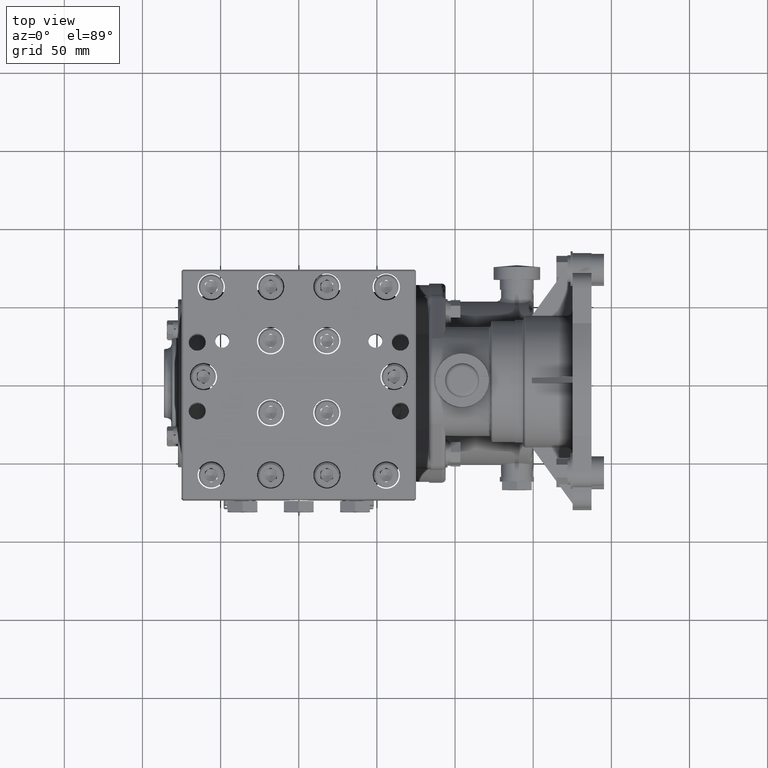
[diagram: clean part render]
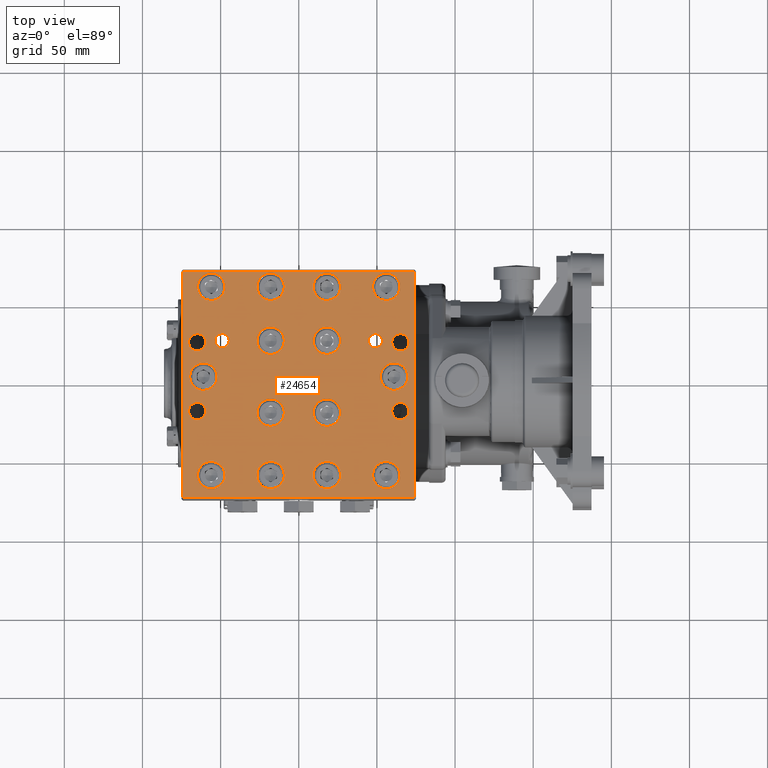
[diagram: same view with one face highlighted and labeled with its STEP entity id]
A machine part, top view. The second image highlights one B-rep face of the part: STEP entity #24654.
In plain terms, the highlighted planar face has unit normal (0, -0, 1).
Its self-contained STEP definition (entity closure, byte-faithful):
#12 = FACE_BOUND ( 'NONE', #84730, .T. ) ;
#111 = AXIS2_PLACEMENT_3D ( 'NONE', #45587, #73936, #10357 ) ;
#456 = FACE_BOUND ( 'NONE', #4973, .T. ) ;
#595 = CARTESIAN_POINT ( 'NONE',  ( -2.057086614173228689, 0.000000000000000000, 9.645669291338583307 ) ) ;
#753 = AXIS2_PLACEMENT_3D ( 'NONE', #29311, #57251, #6951 ) ;
#1359 = CARTESIAN_POINT ( 'NONE',  ( -2.559055118110236560, 0.8661417322834643606, 9.645669291338583307 ) ) ;
#1730 = DIRECTION ( 'NONE',  ( 1.000000000000000000, 0.000000000000000000, 0.000000000000000000 ) ) ;
#1744 = EDGE_CURVE ( 'NONE', #45694, #80552, #57726, .T. ) ;
#2143 = AXIS2_PLACEMENT_3D ( 'NONE', #48973, #14626, #14167 ) ;
#2725 = DIRECTION ( 'NONE',  ( 1.000000000000000000, 0.000000000000000000, 0.000000000000000000 ) ) ;
#2742 = CARTESIAN_POINT ( 'NONE',  ( -2.913385826771653697, -3.090551181102361600, 9.645669291338581530 ) ) ;
#2979 = CARTESIAN_POINT ( 'NONE',  ( 0.7086614173228347191, 0.9055118110236218820, 9.645669291338583307 ) ) ;
#3517 = DIRECTION ( 'NONE',  ( 1.000000000000000000, 0.000000000000000000, 0.000000000000000000 ) ) ;
#3823 = VERTEX_POINT ( 'NONE', #9875 ) ;
#4192 = EDGE_LOOP ( 'NONE', ( #47584, #71069 ) ) ;
#4327 = CARTESIAN_POINT ( 'NONE',  ( 1.053149606299212504, 2.263779527559055094, 9.645669291338583307 ) ) ;
#4390 = CARTESIAN_POINT ( 'NONE',  ( 2.559055118110236560, -0.8661417322834635835, 9.645669291338583307 ) ) ;
#4926 = CARTESIAN_POINT ( 'NONE',  ( -2.559055118110236560, -0.8661417322834646937, 9.645669291338583307 ) ) ;
#4973 = EDGE_LOOP ( 'NONE', ( #26172, #14229 ) ) ;
#5314 = DIRECTION ( 'NONE',  ( -0.000000000000000000, -0.000000000000000000, 1.000000000000000000 ) ) ;
#5430 = VERTEX_POINT ( 'NONE', #81076 ) ;
#5688 = CIRCLE ( 'NONE', #84605, 0.3444881889763778404 ) ;
#5969 = VERTEX_POINT ( 'NONE', #22693 ) ;
#6007 = DIRECTION ( 'NONE',  ( -0.000000000000000000, -0.000000000000000000, 1.000000000000000000 ) ) ;
#6059 = CARTESIAN_POINT ( 'NONE',  ( -2.401574803149606474, 0.000000000000000000, 9.645669291338583307 ) ) ;
#6525 = EDGE_LOOP ( 'NONE', ( #74632, #38934 ) ) ;
#6628 = AXIS2_PLACEMENT_3D ( 'NONE', #58315, #70697, #29480 ) ;
#6807 = CARTESIAN_POINT ( 'NONE',  ( -2.342519685039370803, -0.8661417322834646937, 9.645669291338583307 ) ) ;
#6881 = FACE_BOUND ( 'NONE', #42222, .T. ) ;
#6951 = DIRECTION ( 'NONE',  ( 1.000000000000000000, 0.000000000000000000, 0.000000000000000000 ) ) ;
#6984 = ORIENTED_EDGE ( 'NONE', *, *, #73246, .F. ) ;
#7609 = DIRECTION ( 'NONE',  ( 1.000000000000000000, 0.000000000000000000, 0.000000000000000000 ) ) ;
#7923 = VERTEX_POINT ( 'NONE', #59699 ) ;
#8253 = CARTESIAN_POINT ( 'NONE',  ( 2.913385826771653697, -3.051181102362204189, 9.645669291338581530 ) ) ;
#8321 = CIRCLE ( 'NONE', #38969, 0.1771653543307082912 ) ;
#8379 = EDGE_LOOP ( 'NONE', ( #70415, #70704 ) ) ;
#8385 = DIRECTION ( 'NONE',  ( 1.000000000000000000, 0.000000000000000000, 0.000000000000000000 ) ) ;
#8573 = VECTOR ( 'NONE', #10734, 39.37007874015748143 ) ;
#8858 = CARTESIAN_POINT ( 'NONE',  ( -2.952755905511811108, -3.051181102362204189, 9.645669291338581530 ) ) ;
#9122 = EDGE_LOOP ( 'NONE', ( #60176, #74558 ) ) ;
#9368 = DIRECTION ( 'NONE',  ( -0.000000000000000000, -0.000000000000000000, 1.000000000000000000 ) ) ;
#9577 = DIRECTION ( 'NONE',  ( -0.000000000000000000, -0.000000000000000000, 1.000000000000000000 ) ) ;
#9875 = CARTESIAN_POINT ( 'NONE',  ( 2.342519685039370803, -0.8661417322834635835, 9.645669291338583307 ) ) ;
#10009 = EDGE_CURVE ( 'NONE', #87857, #37821, #39403, .T. ) ;
#10092 = EDGE_LOOP ( 'NONE', ( #20742, #78474 ) ) ;
#10357 = DIRECTION ( 'NONE',  ( 1.000000000000000000, 0.000000000000000000, 0.000000000000000000 ) ) ;
#10377 = DIRECTION ( 'NONE',  ( -0.000000000000000000, -0.000000000000000000, 1.000000000000000000 ) ) ;
#10734 = DIRECTION ( 'NONE',  ( 0.000000000000000000, 1.000000000000000000, 4.720335989052536622E-17 ) ) ;
#10793 = VERTEX_POINT ( 'NONE', #34686 ) ;
#10998 = DIRECTION ( 'NONE',  ( -0.000000000000000000, -0.000000000000000000, 1.000000000000000000 ) ) ;
#11128 = EDGE_CURVE ( 'NONE', #38758, #19470, #45424, .T. ) ;
#11661 = VECTOR ( 'NONE', #70619, 39.37007874015748143 ) ;
#12145 = ORIENTED_EDGE ( 'NONE', *, *, #20741, .F. ) ;
#12329 = CIRCLE ( 'NONE', #22528, 0.3444881889763778404 ) ;
#12331 = EDGE_CURVE ( 'NONE', #88179, #71071, #43572, .T. ) ;
#12412 = VERTEX_POINT ( 'NONE', #79377 ) ;
#12460 = EDGE_CURVE ( 'NONE', #77341, #34094, #52400, .T. ) ;
#12831 = EDGE_LOOP ( 'NONE', ( #27179, #70111 ) ) ;
#13132 = AXIS2_PLACEMENT_3D ( 'NONE', #36031, #64412, #1730 ) ;
#13349 = DIRECTION ( 'NONE',  ( -0.000000000000000000, -0.000000000000000000, 1.000000000000000000 ) ) ;
#13699 = FACE_BOUND ( 'NONE', #24196, .T. ) ;
#13949 = LINE ( 'NONE', #48757, #59831 ) ;
#14167 = DIRECTION ( 'NONE',  ( 0.000000000000000000, -1.000000000000000000, -4.720335989052536622E-17 ) ) ;
#14229 = ORIENTED_EDGE ( 'NONE', *, *, #10009, .F. ) ;
#14478 = CARTESIAN_POINT ( 'NONE',  ( -0.7086614173228347191, 0.9055118110236218820, 9.645669291338583307 ) ) ;
#14626 = DIRECTION ( 'NONE',  ( 0.000000000000000000, -4.720335989052536622E-17, 1.000000000000000000 ) ) ;
#14781 = LINE ( 'NONE', #8858, #11661 ) ;
#14942 = ORIENTED_EDGE ( 'NONE', *, *, #38498, .F. ) ;
#15228 = ORIENTED_EDGE ( 'NONE', *, *, #30067, .F. ) ;
#15464 = ORIENTED_EDGE ( 'NONE', *, *, #81688, .F. ) ;
#15964 = CARTESIAN_POINT ( 'NONE',  ( -2.775590551181102317, 0.8661417322834643606, 9.645669291338583307 ) ) ;
#16055 = ORIENTED_EDGE ( 'NONE', *, *, #34360, .T. ) ;
#16427 = CARTESIAN_POINT ( 'NONE',  ( -2.401574803149606474, 0.000000000000000000, 9.645669291338583307 ) ) ;
#16437 = EDGE_CURVE ( 'NONE', #80773, #77341, #14781, .T. ) ;
#16853 = VERTEX_POINT ( 'NONE', #86935 ) ;
#16891 = DIRECTION ( 'NONE',  ( 0.000000000000000000, -1.000000000000000000, -4.720335989052536622E-17 ) ) ;
#17674 = DIRECTION ( 'NONE',  ( 1.000000000000000000, 0.000000000000000000, 0.000000000000000000 ) ) ;
#18215 = AXIS2_PLACEMENT_3D ( 'NONE', #43426, #84610, #50744 ) ;
#18630 = CIRCLE ( 'NONE', #87368, 0.3444881889763777294 ) ;
#18877 = VERTEX_POINT ( 'NONE', #69742 ) ;
#19265 = EDGE_LOOP ( 'NONE', ( #15228, #81515 ) ) ;
#19470 = VERTEX_POINT ( 'NONE', #28424 ) ;
#19635 = CARTESIAN_POINT ( 'NONE',  ( 2.106299212598425008, 0.9055118110236218820, 9.645669291338583307 ) ) ;
#19715 = CIRCLE ( 'NONE', #18215, 0.3444881889763778404 ) ;
#20105 = FACE_BOUND ( 'NONE', #37612, .T. ) ;
#20393 = CARTESIAN_POINT ( 'NONE',  ( -1.053149606299212504, -2.480314960629921295, 9.645669291338583307 ) ) ;
#20566 = FACE_BOUND ( 'NONE', #24405, .T. ) ;
#20701 = ORIENTED_EDGE ( 'NONE', *, *, #48803, .F. ) ;
#20741 = EDGE_CURVE ( 'NONE', #7923, #83138, #63074, .T. ) ;
#20742 = ORIENTED_EDGE ( 'NONE', *, *, #84105, .F. ) ;
#21007 = FACE_BOUND ( 'NONE', #28044, .T. ) ;
#21048 = EDGE_CURVE ( 'NONE', #85061, #70922, #89364, .T. ) ;
#21331 = EDGE_CURVE ( 'NONE', #55710, #23120, #29550, .T. ) ;
#21461 = DIRECTION ( 'NONE',  ( -0.000000000000000000, -0.000000000000000000, 1.000000000000000000 ) ) ;
#22507 = CIRCLE ( 'NONE', #73671, 0.3444881889763777294 ) ;
#22524 = EDGE_CURVE ( 'NONE', #83046, #84745, #67609, .T. ) ;
#22528 = AXIS2_PLACEMENT_3D ( 'NONE', #2979, #53268, #39977 ) ;
#22634 = ORIENTED_EDGE ( 'NONE', *, *, #73804, .F. ) ;
#22666 = DIRECTION ( 'NONE',  ( -0.000000000000000000, -0.000000000000000000, 1.000000000000000000 ) ) ;
#22693 = CARTESIAN_POINT ( 'NONE',  ( 1.860236220472440971, -2.480314960629921295, 9.645669291338583307 ) ) ;
#23100 = CARTESIAN_POINT ( 'NONE',  ( -2.746062992125984259, 4.218763579739894579E-17, 9.645669291338583307 ) ) ;
#23120 = VERTEX_POINT ( 'NONE', #595 ) ;
#24196 = EDGE_LOOP ( 'NONE', ( #22634, #46382 ) ) ;
#24405 = EDGE_LOOP ( 'NONE', ( #25620, #14942 ) ) ;
#24529 = CARTESIAN_POINT ( 'NONE',  ( 2.204724409448818534, -2.480314960629921295, 9.645669291338583307 ) ) ;
#24537 = DIRECTION ( 'NONE',  ( 1.000000000000000000, 0.000000000000000000, 0.000000000000000000 ) ) ;
#24592 = DIRECTION ( 'NONE',  ( 1.000000000000000000, 0.000000000000000000, 0.000000000000000000 ) ) ;
#24654 = ADVANCED_FACE ( 'NONE', ( #56732, #42550, #63141, #69545, #20566, #6881, #33855, #76404, #20105, #84653, #27882, #456, #13699, #28791, #48091, #62677, #47624, #12, #75962, #77325, #21007 ), #75501, .T. ) ;
#24844 = DIRECTION ( 'NONE',  ( -0.000000000000000000, -0.000000000000000000, 1.000000000000000000 ) ) ;
#25215 = ORIENTED_EDGE ( 'NONE', *, *, #40697, .F. ) ;
#25369 = AXIS2_PLACEMENT_3D ( 'NONE', #47215, #68233, #61380 ) ;
#25409 = EDGE_CURVE ( 'NONE', #77497, #34558, #31426, .T. ) ;
#25588 = DIRECTION ( 'NONE',  ( -0.000000000000000000, -0.000000000000000000, 1.000000000000000000 ) ) ;
#25620 = ORIENTED_EDGE ( 'NONE', *, *, #25409, .F. ) ;
#25696 = AXIS2_PLACEMENT_3D ( 'NONE', #61467, #51802, #8385 ) ;
#26111 = EDGE_CURVE ( 'NONE', #42883, #5969, #87022, .T. ) ;
#26172 = ORIENTED_EDGE ( 'NONE', *, *, #86150, .F. ) ;
#27179 = ORIENTED_EDGE ( 'NONE', *, *, #12331, .F. ) ;
#27208 = DIRECTION ( 'NONE',  ( 1.000000000000000000, 0.000000000000000000, 0.000000000000000000 ) ) ;
#27476 = CARTESIAN_POINT ( 'NONE',  ( -1.929133858267716883, 0.9055118110236218820, 9.645669291338583307 ) ) ;
#27666 = EDGE_CURVE ( 'NONE', #70922, #85061, #19715, .T. ) ;
#27785 = ORIENTED_EDGE ( 'NONE', *, *, #35751, .F. ) ;
#27882 = FACE_BOUND ( 'NONE', #12831, .T. ) ;
#28044 = EDGE_LOOP ( 'NONE', ( #85556, #12145 ) ) ;
#28061 = CARTESIAN_POINT ( 'NONE',  ( 0.7086614173228347191, -0.9055118110236222151, 9.645669291338583307 ) ) ;
#28222 = CARTESIAN_POINT ( 'NONE',  ( 2.204724409448818534, 2.263779527559055094, 9.645669291338583307 ) ) ;
#28424 = CARTESIAN_POINT ( 'NONE',  ( 0.3641732283464568787, -2.480314960629921295, 9.645669291338583307 ) ) ;
#28791 = FACE_BOUND ( 'NONE', #9122, .T. ) ;
#29290 = AXIS2_PLACEMENT_3D ( 'NONE', #53555, #21461, #68618 ) ;
#29311 = CARTESIAN_POINT ( 'NONE',  ( -1.929133858267716883, 0.9055118110236218820, 9.645669291338583307 ) ) ;
#29346 = CIRCLE ( 'NONE', #39410, 0.3444881889763778404 ) ;
#29401 = EDGE_CURVE ( 'NONE', #73629, #78725, #43959, .T. ) ;
#29480 = DIRECTION ( 'NONE',  ( 1.000000000000000000, 0.000000000000000000, 0.000000000000000000 ) ) ;
#29550 = CIRCLE ( 'NONE', #39729, 0.3444881889763777294 ) ;
#29971 = DIRECTION ( 'NONE',  ( -0.000000000000000000, -0.000000000000000000, 1.000000000000000000 ) ) ;
#30067 = EDGE_CURVE ( 'NONE', #72185, #33390, #29346, .T. ) ;
#30882 = CARTESIAN_POINT ( 'NONE',  ( 1.053149606299212504, -2.480314960629921295, 9.645669291338583307 ) ) ;
#30912 = AXIS2_PLACEMENT_3D ( 'NONE', #46519, #10377, #17674 ) ;
#30915 = AXIS2_PLACEMENT_3D ( 'NONE', #65247, #59725, #38215 ) ;
#31133 = CARTESIAN_POINT ( 'NONE',  ( 1.053149606299212504, 0.9055118110236218820, 9.645669291338583307 ) ) ;
#31321 = CARTESIAN_POINT ( 'NONE',  ( 2.913385826771653697, 2.696850393700787496, 9.645669291338583307 ) ) ;
#31403 = VERTEX_POINT ( 'NONE', #55191 ) ;
#31426 = CIRCLE ( 'NONE', #6628, 0.2165354330708657848 ) ;
#33263 = CARTESIAN_POINT ( 'NONE',  ( -0.3641732283464568787, 0.9055118110236218820, 9.645669291338583307 ) ) ;
#33340 = AXIS2_PLACEMENT_3D ( 'NONE', #68421, #54700, #27208 ) ;
#33390 = VERTEX_POINT ( 'NONE', #83513 ) ;
#33428 = ORIENTED_EDGE ( 'NONE', *, *, #60519, .F. ) ;
#33534 = CARTESIAN_POINT ( 'NONE',  ( -2.559055118110236560, -0.8661417322834646937, 9.645669291338583307 ) ) ;
#33855 = FACE_BOUND ( 'NONE', #10092, .T. ) ;
#34094 = VERTEX_POINT ( 'NONE', #39396 ) ;
#34360 = EDGE_CURVE ( 'NONE', #59294, #80773, #64962, .T. ) ;
#34558 = VERTEX_POINT ( 'NONE', #47540 ) ;
#34617 = ORIENTED_EDGE ( 'NONE', *, *, #87103, .F. ) ;
#34686 = CARTESIAN_POINT ( 'NONE',  ( -1.751968503937008759, 0.9055118110236218820, 9.645669291338583307 ) ) ;
#34917 = ORIENTED_EDGE ( 'NONE', *, *, #1744, .F. ) ;
#35216 = DIRECTION ( 'NONE',  ( 1.000000000000000000, 0.000000000000000000, 0.000000000000000000 ) ) ;
#35431 = CARTESIAN_POINT ( 'NONE',  ( -0.7086614173228347191, -2.480314960629921295, 9.645669291338583307 ) ) ;
#35751 = EDGE_CURVE ( 'NONE', #78725, #73629, #53117, .T. ) ;
#36031 = CARTESIAN_POINT ( 'NONE',  ( -0.7086614173228347191, -2.480314960629921295, 9.645669291338583307 ) ) ;
#36306 = CIRCLE ( 'NONE', #48034, 0.1771653543307082912 ) ;
#36574 = AXIS2_PLACEMENT_3D ( 'NONE', #45942, #88444, #38588 ) ;
#37565 = CARTESIAN_POINT ( 'NONE',  ( 1.929133858267716661, 0.9055118110236218820, 9.645669291338583307 ) ) ;
#37612 = EDGE_LOOP ( 'NONE', ( #6984, #20701 ) ) ;
#37821 = VERTEX_POINT ( 'NONE', #89037 ) ;
#38215 = DIRECTION ( 'NONE',  ( 1.000000000000000000, 0.000000000000000000, 0.000000000000000000 ) ) ;
#38498 = EDGE_CURVE ( 'NONE', #34558, #77497, #85319, .T. ) ;
#38588 = DIRECTION ( 'NONE',  ( 1.000000000000000000, 0.000000000000000000, 0.000000000000000000 ) ) ;
#38758 = VERTEX_POINT ( 'NONE', #30882 ) ;
#38893 = CARTESIAN_POINT ( 'NONE',  ( -2.204724409448818534, 2.263779527559055094, 9.645669291338583307 ) ) ;
#38934 = ORIENTED_EDGE ( 'NONE', *, *, #44524, .F. ) ;
#38969 = AXIS2_PLACEMENT_3D ( 'NONE', #37565, #10998, #44433 ) ;
#39182 = CARTESIAN_POINT ( 'NONE',  ( 0.7086614173228347191, 0.9055118110236218820, 9.645669291338583307 ) ) ;
#39396 = CARTESIAN_POINT ( 'NONE',  ( 2.913385826771653697, 2.657480314960630086, 9.645669291338583307 ) ) ;
#39403 = CIRCLE ( 'NONE', #13132, 0.3444881889763778404 ) ;
#39410 = AXIS2_PLACEMENT_3D ( 'NONE', #39182, #53815, #3517 ) ;
#39444 = EDGE_CURVE ( 'NONE', #12412, #10793, #53310, .T. ) ;
#39674 = DIRECTION ( 'NONE',  ( -0.000000000000000000, -0.000000000000000000, 1.000000000000000000 ) ) ;
#39729 = AXIS2_PLACEMENT_3D ( 'NONE', #6059, #13349, #56812 ) ;
#39977 = DIRECTION ( 'NONE',  ( 1.000000000000000000, 0.000000000000000000, 0.000000000000000000 ) ) ;
#40258 = DIRECTION ( 'NONE',  ( 1.000000000000000000, 0.000000000000000000, 0.000000000000000000 ) ) ;
#40517 = CARTESIAN_POINT ( 'NONE',  ( -2.549212598425196319, -2.480314960629921295, 9.645669291338583307 ) ) ;
#40697 = EDGE_CURVE ( 'NONE', #31403, #18877, #76761, .T. ) ;
#41326 = CARTESIAN_POINT ( 'NONE',  ( 0.3641732283464568787, -0.9055118110236222151, 9.645669291338583307 ) ) ;
#42099 = CARTESIAN_POINT ( 'NONE',  ( 0.7086614173228347191, 2.263779527559055094, 9.645669291338583307 ) ) ;
#42222 = EDGE_LOOP ( 'NONE', ( #34617, #54147 ) ) ;
#42550 = FACE_BOUND ( 'NONE', #82280, .T. ) ;
#42558 = DIRECTION ( 'NONE',  ( -0.000000000000000000, -0.000000000000000000, 1.000000000000000000 ) ) ;
#42762 = DIRECTION ( 'NONE',  ( 1.000000000000000000, 0.000000000000000000, 0.000000000000000000 ) ) ;
#42790 = DIRECTION ( 'NONE',  ( -1.000000000000000000, 0.000000000000000000, 0.000000000000000000 ) ) ;
#42825 = DIRECTION ( 'NONE',  ( 1.000000000000000000, 0.000000000000000000, 0.000000000000000000 ) ) ;
#42883 = VERTEX_POINT ( 'NONE', #44755 ) ;
#43027 = DIRECTION ( 'NONE',  ( -0.000000000000000000, -0.000000000000000000, 1.000000000000000000 ) ) ;
#43100 = EDGE_CURVE ( 'NONE', #63205, #62156, #87330, .T. ) ;
#43426 = CARTESIAN_POINT ( 'NONE',  ( 0.7086614173228347191, -0.9055118110236222151, 9.645669291338583307 ) ) ;
#43563 = AXIS2_PLACEMENT_3D ( 'NONE', #35431, #55575, #42762 ) ;
#43572 = CIRCLE ( 'NONE', #45064, 0.3444881889763778404 ) ;
#43760 = CIRCLE ( 'NONE', #67109, 0.3444881889763778404 ) ;
#43762 = DIRECTION ( 'NONE',  ( -0.000000000000000000, -0.000000000000000000, 1.000000000000000000 ) ) ;
#43959 = CIRCLE ( 'NONE', #29290, 0.2165354330708657848 ) ;
#44138 = CARTESIAN_POINT ( 'NONE',  ( -2.549212598425196319, 2.263779527559055094, 9.645669291338583307 ) ) ;
#44149 = DIRECTION ( 'NONE',  ( 1.000000000000000000, 0.000000000000000000, 0.000000000000000000 ) ) ;
#44433 = DIRECTION ( 'NONE',  ( 1.000000000000000000, 0.000000000000000000, 0.000000000000000000 ) ) ;
#44524 = EDGE_CURVE ( 'NONE', #62156, #63205, #61308, .T. ) ;
#44755 = CARTESIAN_POINT ( 'NONE',  ( 2.549212598425196319, -2.480314960629921295, 9.645669291338583307 ) ) ;
#45064 = AXIS2_PLACEMENT_3D ( 'NONE', #71666, #22666, #72094 ) ;
#45133 = DIRECTION ( 'NONE',  ( 1.000000000000000000, 0.000000000000000000, 0.000000000000000000 ) ) ;
#45148 = ORIENTED_EDGE ( 'NONE', *, *, #21048, .F. ) ;
#45424 = CIRCLE ( 'NONE', #71778, 0.3444881889763778404 ) ;
#45587 = CARTESIAN_POINT ( 'NONE',  ( 2.204724409448818534, -2.480314960629921295, 9.645669291338583307 ) ) ;
#45620 = CARTESIAN_POINT ( 'NONE',  ( 2.401574803149606474, 0.000000000000000000, 9.645669291338583307 ) ) ;
#45625 = EDGE_LOOP ( 'NONE', ( #68393, #16055, #50015, #71897 ) ) ;
#45654 = CARTESIAN_POINT ( 'NONE',  ( 0.7086614173228347191, 2.263779527559055094, 9.645669291338583307 ) ) ;
#45694 = VERTEX_POINT ( 'NONE', #6807 ) ;
#45921 = ORIENTED_EDGE ( 'NONE', *, *, #27666, .F. ) ;
#45942 = CARTESIAN_POINT ( 'NONE',  ( -0.7086614173228347191, 0.9055118110236218820, 9.645669291338583307 ) ) ;
#46165 = EDGE_CURVE ( 'NONE', #78844, #84218, #80978, .T. ) ;
#46322 = EDGE_CURVE ( 'NONE', #33390, #72185, #12329, .T. ) ;
#46382 = ORIENTED_EDGE ( 'NONE', *, *, #61106, .F. ) ;
#46519 = CARTESIAN_POINT ( 'NONE',  ( -2.204724409448818534, -2.480314960629921295, 9.645669291338583307 ) ) ;
#46719 = CARTESIAN_POINT ( 'NONE',  ( 2.559055118110236560, -0.8661417322834635835, 9.645669291338583307 ) ) ;
#47215 = CARTESIAN_POINT ( 'NONE',  ( 2.559055118110236560, 0.8661417322834641386, 9.645669291338583307 ) ) ;
#47336 = AXIS2_PLACEMENT_3D ( 'NONE', #1359, #70450, #35216 ) ;
#47540 = CARTESIAN_POINT ( 'NONE',  ( 2.342519685039370803, 0.8661417322834641386, 9.645669291338583307 ) ) ;
#47584 = ORIENTED_EDGE ( 'NONE', *, *, #22524, .F. ) ;
#47624 = FACE_BOUND ( 'NONE', #8379, .T. ) ;
#48034 = AXIS2_PLACEMENT_3D ( 'NONE', #27476, #55416, #83322 ) ;
#48091 = FACE_BOUND ( 'NONE', #90242, .T. ) ;
#48264 = CIRCLE ( 'NONE', #52628, 0.2165354330708657848 ) ;
#48430 = CARTESIAN_POINT ( 'NONE',  ( -2.342519685039370803, 0.8661417322834643606, 9.645669291338583307 ) ) ;
#48593 = CARTESIAN_POINT ( 'NONE',  ( -0.3641732283464568787, -0.9055118110236222151, 9.645669291338583307 ) ) ;
#48757 = CARTESIAN_POINT ( 'NONE',  ( -2.952755905511811108, 2.657480314960630086, 9.645669291338583307 ) ) ;
#48803 = EDGE_CURVE ( 'NONE', #60334, #82075, #65208, .T. ) ;
#48973 = CARTESIAN_POINT ( 'NONE',  ( -2.952755905511811108, 2.696850393700787496, 9.645669291338583307 ) ) ;
#48991 = DIRECTION ( 'NONE',  ( 1.000000000000000000, 0.000000000000000000, 0.000000000000000000 ) ) ;
#49344 = DIRECTION ( 'NONE',  ( -0.000000000000000000, -0.000000000000000000, 1.000000000000000000 ) ) ;
#49657 = CARTESIAN_POINT ( 'NONE',  ( -1.053149606299212504, 0.9055118110236218820, 9.645669291338583307 ) ) ;
#50015 = ORIENTED_EDGE ( 'NONE', *, *, #16437, .T. ) ;
#50167 = CARTESIAN_POINT ( 'NONE',  ( 0.7086614173228347191, -2.480314960629921295, 9.645669291338583307 ) ) ;
#50744 = DIRECTION ( 'NONE',  ( 1.000000000000000000, 0.000000000000000000, 0.000000000000000000 ) ) ;
#51263 = AXIS2_PLACEMENT_3D ( 'NONE', #4390, #58417, #45133 ) ;
#51369 = CARTESIAN_POINT ( 'NONE',  ( -1.053149606299212504, -0.9055118110236222151, 9.645669291338583307 ) ) ;
#51373 = ORIENTED_EDGE ( 'NONE', *, *, #29401, .F. ) ;
#51579 = AXIS2_PLACEMENT_3D ( 'NONE', #14478, #43762, #71681 ) ;
#51802 = DIRECTION ( 'NONE',  ( -0.000000000000000000, -0.000000000000000000, 1.000000000000000000 ) ) ;
#52032 = DIRECTION ( 'NONE',  ( 1.000000000000000000, 0.000000000000000000, 0.000000000000000000 ) ) ;
#52400 = LINE ( 'NONE', #31321, #8573 ) ;
#52628 = AXIS2_PLACEMENT_3D ( 'NONE', #46719, #73259, #59530 ) ;
#52795 = DIRECTION ( 'NONE',  ( 1.000000000000000000, 0.000000000000000000, 0.000000000000000000 ) ) ;
#53117 = CIRCLE ( 'NONE', #47336, 0.2165354330708657848 ) ;
#53242 = VERTEX_POINT ( 'NONE', #44138 ) ;
#53268 = DIRECTION ( 'NONE',  ( -0.000000000000000000, -0.000000000000000000, 1.000000000000000000 ) ) ;
#53310 = CIRCLE ( 'NONE', #753, 0.1771653543307082912 ) ;
#53332 = AXIS2_PLACEMENT_3D ( 'NONE', #4926, #87308, #24592 ) ;
#53555 = CARTESIAN_POINT ( 'NONE',  ( -2.559055118110236560, 0.8661417322834643606, 9.645669291338583307 ) ) ;
#53713 = DIRECTION ( 'NONE',  ( -0.000000000000000000, -0.000000000000000000, 1.000000000000000000 ) ) ;
#53815 = DIRECTION ( 'NONE',  ( -0.000000000000000000, -0.000000000000000000, 1.000000000000000000 ) ) ;
#54147 = ORIENTED_EDGE ( 'NONE', *, *, #39444, .F. ) ;
#54231 = EDGE_CURVE ( 'NONE', #71071, #88179, #5688, .T. ) ;
#54352 = EDGE_LOOP ( 'NONE', ( #67019, #73808 ) ) ;
#54700 = DIRECTION ( 'NONE',  ( -0.000000000000000000, -0.000000000000000000, 1.000000000000000000 ) ) ;
#54827 = VERTEX_POINT ( 'NONE', #69799 ) ;
#55191 = CARTESIAN_POINT ( 'NONE',  ( 2.057086614173228689, 4.218763579739894579E-17, 9.645669291338583307 ) ) ;
#55416 = DIRECTION ( 'NONE',  ( -0.000000000000000000, -0.000000000000000000, 1.000000000000000000 ) ) ;
#55575 = DIRECTION ( 'NONE',  ( -0.000000000000000000, -0.000000000000000000, 1.000000000000000000 ) ) ;
#55619 = ORIENTED_EDGE ( 'NONE', *, *, #72913, .F. ) ;
#55710 = VERTEX_POINT ( 'NONE', #23100 ) ;
#56177 = AXIS2_PLACEMENT_3D ( 'NONE', #90399, #83552, #42825 ) ;
#56462 = DIRECTION ( 'NONE',  ( -0.000000000000000000, -0.000000000000000000, 1.000000000000000000 ) ) ;
#56732 = FACE_OUTER_BOUND ( 'NONE', #45625, .T. ) ;
#56812 = DIRECTION ( 'NONE',  ( 1.000000000000000000, 0.000000000000000000, 0.000000000000000000 ) ) ;
#56954 = AXIS2_PLACEMENT_3D ( 'NONE', #42099, #43027, #48991 ) ;
#57139 = CARTESIAN_POINT ( 'NONE',  ( -0.3641732283464568787, 2.263779527559055094, 9.645669291338583307 ) ) ;
#57251 = DIRECTION ( 'NONE',  ( -0.000000000000000000, -0.000000000000000000, 1.000000000000000000 ) ) ;
#57369 = EDGE_CURVE ( 'NONE', #34094, #59294, #13949, .T. ) ;
#57564 = EDGE_CURVE ( 'NONE', #84745, #83046, #73086, .T. ) ;
#57726 = CIRCLE ( 'NONE', #53332, 0.2165354330708657848 ) ;
#58315 = CARTESIAN_POINT ( 'NONE',  ( 2.559055118110236560, 0.8661417322834641386, 9.645669291338583307 ) ) ;
#58417 = DIRECTION ( 'NONE',  ( -0.000000000000000000, -0.000000000000000000, 1.000000000000000000 ) ) ;
#58501 = CIRCLE ( 'NONE', #51263, 0.2165354330708657848 ) ;
#59212 = CARTESIAN_POINT ( 'NONE',  ( 2.401574803149606474, 0.000000000000000000, 9.645669291338583307 ) ) ;
#59294 = VERTEX_POINT ( 'NONE', #69310 ) ;
#59530 = DIRECTION ( 'NONE',  ( 1.000000000000000000, 0.000000000000000000, 0.000000000000000000 ) ) ;
#59699 = CARTESIAN_POINT ( 'NONE',  ( 1.860236220472440971, 2.263779527559055094, 9.645669291338583307 ) ) ;
#59725 = DIRECTION ( 'NONE',  ( -0.000000000000000000, -0.000000000000000000, 1.000000000000000000 ) ) ;
#59831 = VECTOR ( 'NONE', #42790, 39.37007874015748143 ) ;
#59846 = CARTESIAN_POINT ( 'NONE',  ( 2.549212598425196319, 2.263779527559055094, 9.645669291338583307 ) ) ;
#60176 = ORIENTED_EDGE ( 'NONE', *, *, #68982, .F. ) ;
#60307 = VECTOR ( 'NONE', #16891, 39.37007874015748143 ) ;
#60334 = VERTEX_POINT ( 'NONE', #71163 ) ;
#60519 = EDGE_CURVE ( 'NONE', #18877, #31403, #77869, .T. ) ;
#60540 = CARTESIAN_POINT ( 'NONE',  ( -0.7086614173228347191, 2.263779527559055094, 9.645669291338583307 ) ) ;
#61090 = CIRCLE ( 'NONE', #33340, 0.3444881889763777294 ) ;
#61106 = EDGE_CURVE ( 'NONE', #69454, #16853, #80824, .T. ) ;
#61308 = CIRCLE ( 'NONE', #56954, 0.3444881889763778404 ) ;
#61380 = DIRECTION ( 'NONE',  ( 1.000000000000000000, 0.000000000000000000, 0.000000000000000000 ) ) ;
#61467 = CARTESIAN_POINT ( 'NONE',  ( -0.7086614173228347191, 2.263779527559055094, 9.645669291338583307 ) ) ;
#61903 = CIRCLE ( 'NONE', #85296, 0.3444881889763777294 ) ;
#62053 = EDGE_LOOP ( 'NONE', ( #55619, #77570 ) ) ;
#62156 = VERTEX_POINT ( 'NONE', #84242 ) ;
#62572 = DIRECTION ( 'NONE',  ( 1.000000000000000000, 0.000000000000000000, 0.000000000000000000 ) ) ;
#62636 = ORIENTED_EDGE ( 'NONE', *, *, #72949, .F. ) ;
#62677 = FACE_BOUND ( 'NONE', #79844, .T. ) ;
#63074 = CIRCLE ( 'NONE', #30915, 0.3444881889763777294 ) ;
#63141 = FACE_BOUND ( 'NONE', #63326, .T. ) ;
#63169 = DIRECTION ( 'NONE',  ( 1.000000000000000000, 0.000000000000000000, 0.000000000000000000 ) ) ;
#63205 = VERTEX_POINT ( 'NONE', #4327 ) ;
#63324 = DIRECTION ( 'NONE',  ( 1.000000000000000000, 0.000000000000000000, 0.000000000000000000 ) ) ;
#63326 = EDGE_LOOP ( 'NONE', ( #34917, #15464 ) ) ;
#63659 = AXIS2_PLACEMENT_3D ( 'NONE', #24529, #5314, #52032 ) ;
#64412 = DIRECTION ( 'NONE',  ( -0.000000000000000000, -0.000000000000000000, 1.000000000000000000 ) ) ;
#64962 = LINE ( 'NONE', #2742, #60307 ) ;
#65208 = CIRCLE ( 'NONE', #25696, 0.3444881889763778404 ) ;
#65247 = CARTESIAN_POINT ( 'NONE',  ( 2.204724409448818534, 2.263779527559055094, 9.645669291338583307 ) ) ;
#65325 = DIRECTION ( 'NONE',  ( -0.000000000000000000, -0.000000000000000000, 1.000000000000000000 ) ) ;
#66540 = CARTESIAN_POINT ( 'NONE',  ( 0.7086614173228347191, -2.480314960629921295, 9.645669291338583307 ) ) ;
#67019 = ORIENTED_EDGE ( 'NONE', *, *, #69484, .F. ) ;
#67109 = AXIS2_PLACEMENT_3D ( 'NONE', #66540, #53713, #81605 ) ;
#67609 = CIRCLE ( 'NONE', #51579, 0.3444881889763778404 ) ;
#68233 = DIRECTION ( 'NONE',  ( -0.000000000000000000, -0.000000000000000000, 1.000000000000000000 ) ) ;
#68312 = AXIS2_PLACEMENT_3D ( 'NONE', #45654, #39674, #73550 ) ;
#68393 = ORIENTED_EDGE ( 'NONE', *, *, #57369, .T. ) ;
#68421 = CARTESIAN_POINT ( 'NONE',  ( -2.204724409448818534, 2.263779527559055094, 9.645669291338583307 ) ) ;
#68618 = DIRECTION ( 'NONE',  ( 1.000000000000000000, 0.000000000000000000, 0.000000000000000000 ) ) ;
#68982 = EDGE_CURVE ( 'NONE', #23120, #55710, #18630, .T. ) ;
#69310 = CARTESIAN_POINT ( 'NONE',  ( -2.913385826771653697, 2.657480314960630086, 9.645669291338583307 ) ) ;
#69454 = VERTEX_POINT ( 'NONE', #40517 ) ;
#69484 = EDGE_CURVE ( 'NONE', #5430, #53242, #61090, .T. ) ;
#69545 = FACE_BOUND ( 'NONE', #62053, .T. ) ;
#69552 = DIRECTION ( 'NONE',  ( 1.000000000000000000, 0.000000000000000000, 0.000000000000000000 ) ) ;
#69574 = CARTESIAN_POINT ( 'NONE',  ( -2.204724409448818534, -2.480314960629921295, 9.645669291338583307 ) ) ;
#69742 = CARTESIAN_POINT ( 'NONE',  ( 2.746062992125984259, 0.000000000000000000, 9.645669291338583307 ) ) ;
#69799 = CARTESIAN_POINT ( 'NONE',  ( 2.775590551181102317, -0.8661417322834635835, 9.645669291338583307 ) ) ;
#70111 = ORIENTED_EDGE ( 'NONE', *, *, #54231, .F. ) ;
#70329 = AXIS2_PLACEMENT_3D ( 'NONE', #60540, #74729, #74277 ) ;
#70415 = ORIENTED_EDGE ( 'NONE', *, *, #11128, .F. ) ;
#70450 = DIRECTION ( 'NONE',  ( -0.000000000000000000, -0.000000000000000000, 1.000000000000000000 ) ) ;
#70619 = DIRECTION ( 'NONE',  ( 1.000000000000000000, 0.000000000000000000, 0.000000000000000000 ) ) ;
#70697 = DIRECTION ( 'NONE',  ( -0.000000000000000000, -0.000000000000000000, 1.000000000000000000 ) ) ;
#70704 = ORIENTED_EDGE ( 'NONE', *, *, #70886, .F. ) ;
#70886 = EDGE_CURVE ( 'NONE', #19470, #38758, #43760, .T. ) ;
#70922 = VERTEX_POINT ( 'NONE', #41326 ) ;
#71027 = AXIS2_PLACEMENT_3D ( 'NONE', #45620, #65325, #24537 ) ;
#71069 = ORIENTED_EDGE ( 'NONE', *, *, #57564, .F. ) ;
#71071 = VERTEX_POINT ( 'NONE', #51369 ) ;
#71163 = CARTESIAN_POINT ( 'NONE',  ( -1.053149606299212504, 2.263779527559055094, 9.645669291338583307 ) ) ;
#71666 = CARTESIAN_POINT ( 'NONE',  ( -0.7086614173228347191, -0.9055118110236222151, 9.645669291338583307 ) ) ;
#71681 = DIRECTION ( 'NONE',  ( 1.000000000000000000, 0.000000000000000000, 0.000000000000000000 ) ) ;
#71778 = AXIS2_PLACEMENT_3D ( 'NONE', #50167, #29971, #7609 ) ;
#71897 = ORIENTED_EDGE ( 'NONE', *, *, #12460, .T. ) ;
#72094 = DIRECTION ( 'NONE',  ( 1.000000000000000000, 0.000000000000000000, 0.000000000000000000 ) ) ;
#72185 = VERTEX_POINT ( 'NONE', #31133 ) ;
#72218 = EDGE_CURVE ( 'NONE', #3823, #54827, #48264, .T. ) ;
#72913 = EDGE_CURVE ( 'NONE', #54827, #3823, #58501, .T. ) ;
#72949 = EDGE_CURVE ( 'NONE', #5969, #42883, #81860, .T. ) ;
#73086 = CIRCLE ( 'NONE', #36574, 0.3444881889763778404 ) ;
#73246 = EDGE_CURVE ( 'NONE', #82075, #60334, #74687, .T. ) ;
#73259 = DIRECTION ( 'NONE',  ( -0.000000000000000000, -0.000000000000000000, 1.000000000000000000 ) ) ;
#73318 = AXIS2_PLACEMENT_3D ( 'NONE', #28061, #56462, #63324 ) ;
#73480 = AXIS2_PLACEMENT_3D ( 'NONE', #59212, #9368, #44149 ) ;
#73550 = DIRECTION ( 'NONE',  ( 1.000000000000000000, 0.000000000000000000, 0.000000000000000000 ) ) ;
#73597 = CARTESIAN_POINT ( 'NONE',  ( -2.913385826771653697, -3.051181102362204189, 9.645669291338581530 ) ) ;
#73629 = VERTEX_POINT ( 'NONE', #48430 ) ;
#73671 = AXIS2_PLACEMENT_3D ( 'NONE', #28222, #49344, #62572 ) ;
#73793 = CIRCLE ( 'NONE', #89842, 0.2165354330708657848 ) ;
#73804 = EDGE_CURVE ( 'NONE', #16853, #69454, #87866, .T. ) ;
#73808 = ORIENTED_EDGE ( 'NONE', *, *, #78096, .F. ) ;
#73936 = DIRECTION ( 'NONE',  ( -0.000000000000000000, -0.000000000000000000, 1.000000000000000000 ) ) ;
#74277 = DIRECTION ( 'NONE',  ( 1.000000000000000000, 0.000000000000000000, 0.000000000000000000 ) ) ;
#74558 = ORIENTED_EDGE ( 'NONE', *, *, #21331, .F. ) ;
#74632 = ORIENTED_EDGE ( 'NONE', *, *, #43100, .F. ) ;
#74687 = CIRCLE ( 'NONE', #70329, 0.3444881889763778404 ) ;
#74729 = DIRECTION ( 'NONE',  ( -0.000000000000000000, -0.000000000000000000, 1.000000000000000000 ) ) ;
#74839 = CARTESIAN_POINT ( 'NONE',  ( 2.775590551181102317, 0.8661417322834641386, 9.645669291338583307 ) ) ;
#75501 = PLANE ( 'NONE',  #2143 ) ;
#75962 = FACE_BOUND ( 'NONE', #19265, .T. ) ;
#76404 = FACE_BOUND ( 'NONE', #54352, .T. ) ;
#76761 = CIRCLE ( 'NONE', #71027, 0.3444881889763777294 ) ;
#77325 = FACE_BOUND ( 'NONE', #6525, .T. ) ;
#77329 = CARTESIAN_POINT ( 'NONE',  ( -2.775590551181102317, -0.8661417322834646937, 9.645669291338583307 ) ) ;
#77341 = VERTEX_POINT ( 'NONE', #8253 ) ;
#77497 = VERTEX_POINT ( 'NONE', #74839 ) ;
#77570 = ORIENTED_EDGE ( 'NONE', *, *, #72218, .F. ) ;
#77869 = CIRCLE ( 'NONE', #73480, 0.3444881889763777294 ) ;
#78096 = EDGE_CURVE ( 'NONE', #53242, #5430, #61903, .T. ) ;
#78474 = ORIENTED_EDGE ( 'NONE', *, *, #46165, .F. ) ;
#78725 = VERTEX_POINT ( 'NONE', #15964 ) ;
#78844 = VERTEX_POINT ( 'NONE', #87749 ) ;
#79377 = CARTESIAN_POINT ( 'NONE',  ( -2.106299212598425008, 0.9055118110236218820, 9.645669291338583307 ) ) ;
#79397 = AXIS2_PLACEMENT_3D ( 'NONE', #69574, #6007, #63169 ) ;
#79844 = EDGE_LOOP ( 'NONE', ( #85827, #62636 ) ) ;
#80060 = CARTESIAN_POINT ( 'NONE',  ( 1.053149606299212504, -0.9055118110236222151, 9.645669291338583307 ) ) ;
#80552 = VERTEX_POINT ( 'NONE', #77329 ) ;
#80773 = VERTEX_POINT ( 'NONE', #73597 ) ;
#80824 = CIRCLE ( 'NONE', #79397, 0.3444881889763777294 ) ;
#80946 = EDGE_CURVE ( 'NONE', #83138, #7923, #22507, .T. ) ;
#80978 = CIRCLE ( 'NONE', #56177, 0.1771653543307082912 ) ;
#81076 = CARTESIAN_POINT ( 'NONE',  ( -1.860236220472440971, 2.263779527559055094, 9.645669291338583307 ) ) ;
#81515 = ORIENTED_EDGE ( 'NONE', *, *, #46322, .F. ) ;
#81605 = DIRECTION ( 'NONE',  ( 1.000000000000000000, 0.000000000000000000, 0.000000000000000000 ) ) ;
#81688 = EDGE_CURVE ( 'NONE', #80552, #45694, #73793, .T. ) ;
#81860 = CIRCLE ( 'NONE', #111, 0.3444881889763777294 ) ;
#82075 = VERTEX_POINT ( 'NONE', #57139 ) ;
#82280 = EDGE_LOOP ( 'NONE', ( #51373, #27785 ) ) ;
#82984 = CIRCLE ( 'NONE', #43563, 0.3444881889763778404 ) ;
#83046 = VERTEX_POINT ( 'NONE', #33263 ) ;
#83138 = VERTEX_POINT ( 'NONE', #59846 ) ;
#83282 = CARTESIAN_POINT ( 'NONE',  ( -0.7086614173228347191, -0.9055118110236222151, 9.645669291338583307 ) ) ;
#83322 = DIRECTION ( 'NONE',  ( 1.000000000000000000, 0.000000000000000000, 0.000000000000000000 ) ) ;
#83513 = CARTESIAN_POINT ( 'NONE',  ( 0.3641732283464568787, 0.9055118110236218820, 9.645669291338583307 ) ) ;
#83552 = DIRECTION ( 'NONE',  ( -0.000000000000000000, -0.000000000000000000, 1.000000000000000000 ) ) ;
#84105 = EDGE_CURVE ( 'NONE', #84218, #78844, #8321, .T. ) ;
#84218 = VERTEX_POINT ( 'NONE', #19635 ) ;
#84242 = CARTESIAN_POINT ( 'NONE',  ( 0.3641732283464568787, 2.263779527559055094, 9.645669291338583307 ) ) ;
#84605 = AXIS2_PLACEMENT_3D ( 'NONE', #83282, #42558, #69552 ) ;
#84610 = DIRECTION ( 'NONE',  ( -0.000000000000000000, -0.000000000000000000, 1.000000000000000000 ) ) ;
#84653 = FACE_BOUND ( 'NONE', #4192, .T. ) ;
#84730 = EDGE_LOOP ( 'NONE', ( #45148, #45921 ) ) ;
#84745 = VERTEX_POINT ( 'NONE', #49657 ) ;
#85061 = VERTEX_POINT ( 'NONE', #80060 ) ;
#85296 = AXIS2_PLACEMENT_3D ( 'NONE', #38893, #25588, #40258 ) ;
#85319 = CIRCLE ( 'NONE', #25369, 0.2165354330708657848 ) ;
#85556 = ORIENTED_EDGE ( 'NONE', *, *, #80946, .F. ) ;
#85827 = ORIENTED_EDGE ( 'NONE', *, *, #26111, .F. ) ;
#86150 = EDGE_CURVE ( 'NONE', #37821, #87857, #82984, .T. ) ;
#86935 = CARTESIAN_POINT ( 'NONE',  ( -1.860236220472440971, -2.480314960629921295, 9.645669291338583307 ) ) ;
#87022 = CIRCLE ( 'NONE', #63659, 0.3444881889763777294 ) ;
#87103 = EDGE_CURVE ( 'NONE', #10793, #12412, #36306, .T. ) ;
#87308 = DIRECTION ( 'NONE',  ( -0.000000000000000000, -0.000000000000000000, 1.000000000000000000 ) ) ;
#87330 = CIRCLE ( 'NONE', #68312, 0.3444881889763778404 ) ;
#87368 = AXIS2_PLACEMENT_3D ( 'NONE', #16427, #9577, #2725 ) ;
#87749 = CARTESIAN_POINT ( 'NONE',  ( 1.751968503937008315, 0.9055118110236218820, 9.645669291338583307 ) ) ;
#87857 = VERTEX_POINT ( 'NONE', #20393 ) ;
#87866 = CIRCLE ( 'NONE', #30912, 0.3444881889763777294 ) ;
#88179 = VERTEX_POINT ( 'NONE', #48593 ) ;
#88444 = DIRECTION ( 'NONE',  ( -0.000000000000000000, -0.000000000000000000, 1.000000000000000000 ) ) ;
#89037 = CARTESIAN_POINT ( 'NONE',  ( -0.3641732283464568787, -2.480314960629921295, 9.645669291338583307 ) ) ;
#89364 = CIRCLE ( 'NONE', #73318, 0.3444881889763778404 ) ;
#89842 = AXIS2_PLACEMENT_3D ( 'NONE', #33534, #24844, #52795 ) ;
#90242 = EDGE_LOOP ( 'NONE', ( #33428, #25215 ) ) ;
#90399 = CARTESIAN_POINT ( 'NONE',  ( 1.929133858267716661, 0.9055118110236218820, 9.645669291338583307 ) ) ;